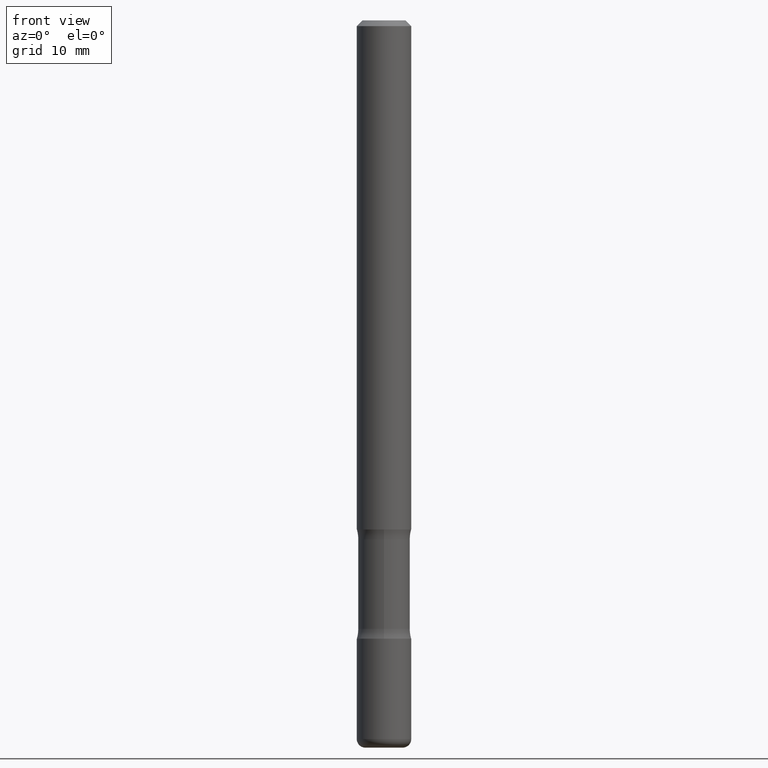
[diagram: clean part render]
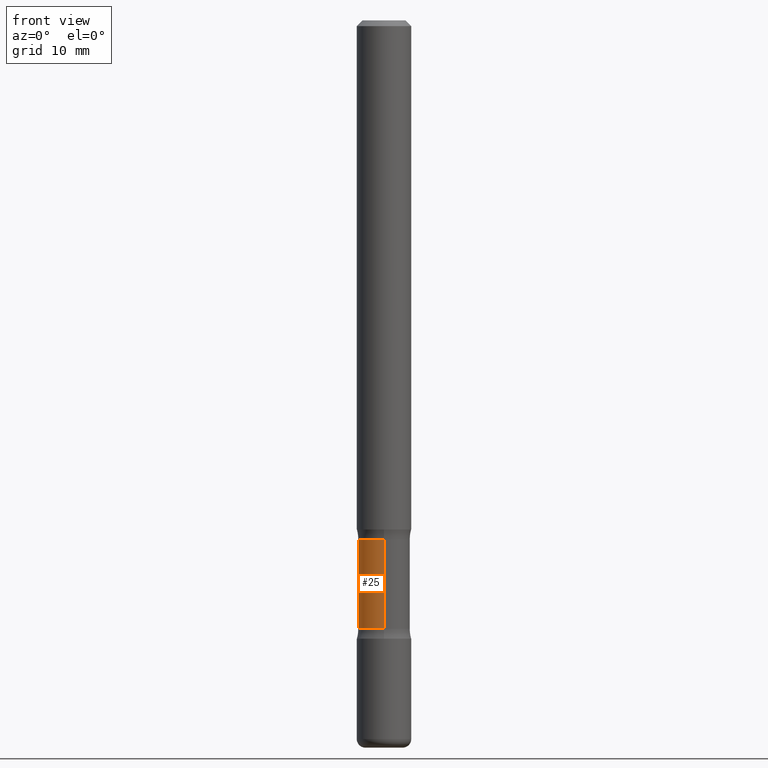
[diagram: same view with one face highlighted and labeled with its STEP entity id]
A machine part, front view. The second image highlights one B-rep face of the part: STEP entity #25.
In plain terms, the highlighted cylindrical surface (edge-blend (fillet) strip) has radius 2.2622 mm, axis along (0, -0, -1).
Its self-contained STEP definition (entity closure, byte-faithful):
#17 = DIRECTION ( 'NONE',  ( 2.553476385947133355E-29, -3.336808337214295667E-15, -1.000000000000000000 ) ) ;
#25 = ADVANCED_FACE ( 'NONE', ( #347 ), #389, .T. ) ;
#33 = DIRECTION ( 'NONE',  ( 2.553476385947133355E-29, -3.336808337214295667E-15, -1.000000000000000000 ) ) ;
#36 = AXIS2_PLACEMENT_3D ( 'NONE', #315, #17, #125 ) ;
#70 = CIRCLE ( 'NONE', #147, 0.08906249999999994726 ) ;
#78 = VECTOR ( 'NONE', #501, 39.37007874015748143 ) ;
#113 = DIRECTION ( 'NONE',  ( 6.982962677686265133E-15, 1.000000000000000000, -3.067338098149349877E-15 ) ) ;
#125 = DIRECTION ( 'NONE',  ( 6.982962677686265133E-15, 1.000000000000000000, -3.067338098149350666E-15 ) ) ;
#147 = AXIS2_PLACEMENT_3D ( 'NONE', #548, #33, #113 ) ;
#185 = ORIENTED_EDGE ( 'NONE', *, *, #321, .T. ) ;
#208 = VERTEX_POINT ( 'NONE', #372 ) ;
#212 = ORIENTED_EDGE ( 'NONE', *, *, #371, .T. ) ;
#214 = ORIENTED_EDGE ( 'NONE', *, *, #427, .F. ) ;
#217 = VECTOR ( 'NONE', #277, 39.37007874015748143 ) ;
#239 = CARTESIAN_POINT ( 'NONE',  ( -6.270923951087521301E-16, -0.08906250000000723310, -2.091089789977795377 ) ) ;
#277 = DIRECTION ( 'NONE',  ( 2.553476385947133355E-29, -3.336808337214295667E-15, -1.000000000000000000 ) ) ;
#293 = VERTEX_POINT ( 'NONE', #239 ) ;
#296 = AXIS2_PLACEMENT_3D ( 'NONE', #303, #524, #443 ) ;
#303 = CARTESIAN_POINT ( 'NONE',  ( 6.154174857873591467E-29, -8.670700971497045879E-15, -2.500000000000000000 ) ) ;
#315 = CARTESIAN_POINT ( 'NONE',  ( 5.110032292609207884E-29, -7.306245973522905960E-15, -2.091089789977795821 ) ) ;
#321 = EDGE_CURVE ( 'NONE', #380, #208, #555, .T. ) ;
#347 = FACE_OUTER_BOUND ( 'NONE', #474, .T. ) ;
#361 = ORIENTED_EDGE ( 'NONE', *, *, #530, .F. ) ;
#371 = EDGE_CURVE ( 'NONE', #429, #380, #70, .T. ) ;
#372 = CARTESIAN_POINT ( 'NONE',  ( 6.219201134814836160E-16, 0.08906249999999261979, -2.091089789977795821 ) ) ;
#377 = CIRCLE ( 'NONE', #36, 0.08906249999999993339 ) ;
#380 = VERTEX_POINT ( 'NONE', #457 ) ;
#389 = CYLINDRICAL_SURFACE ( 'NONE', #296, 0.08906249999999993339 ) ;
#402 = LINE ( 'NONE', #454, #78 ) ;
#417 = CARTESIAN_POINT ( 'NONE',  ( -6.270923951087611034E-16, -0.08906250000000623390, -1.783910210022204401 ) ) ;
#427 = EDGE_CURVE ( 'NONE', #293, #208, #377, .T. ) ;
#429 = VERTEX_POINT ( 'NONE', #417 ) ;
#443 = DIRECTION ( 'NONE',  ( 6.982962677686265133E-15, 1.000000000000000000, -6.134676196298701332E-15 ) ) ;
#454 = CARTESIAN_POINT ( 'NONE',  ( -6.110131029264649859E-16, -0.08906250000000860700, -2.499999999999999556 ) ) ;
#457 = CARTESIAN_POINT ( 'NONE',  ( 6.219201134814759246E-16, 0.08906249999999366063, -1.783910210022204845 ) ) ;
#464 = CARTESIAN_POINT ( 'NONE',  ( 6.219201134814940684E-16, 0.08906249999999125977, -2.500000000000000444 ) ) ;
#474 = EDGE_LOOP ( 'NONE', ( #361, #212, #185, #214 ) ) ;
#501 = DIRECTION ( 'NONE',  ( 2.553476385947133355E-29, -3.336808337214295667E-15, -1.000000000000000000 ) ) ;
#524 = DIRECTION ( 'NONE',  ( 2.553476385947133355E-29, -3.336808337214295667E-15, -1.000000000000000000 ) ) ;
#530 = EDGE_CURVE ( 'NONE', #429, #293, #402, .T. ) ;
#548 = CARTESIAN_POINT ( 'NONE',  ( 4.325656488947447574E-29, -6.281246590105103764E-15, -1.783910210022204623 ) ) ;
#555 = LINE ( 'NONE', #464, #217 ) ;